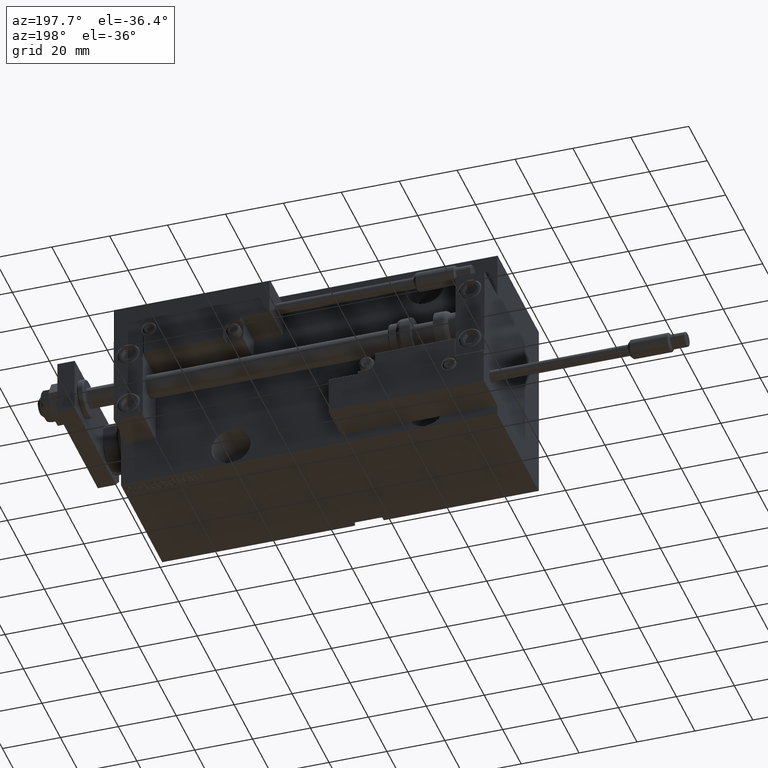
[diagram: clean part render]
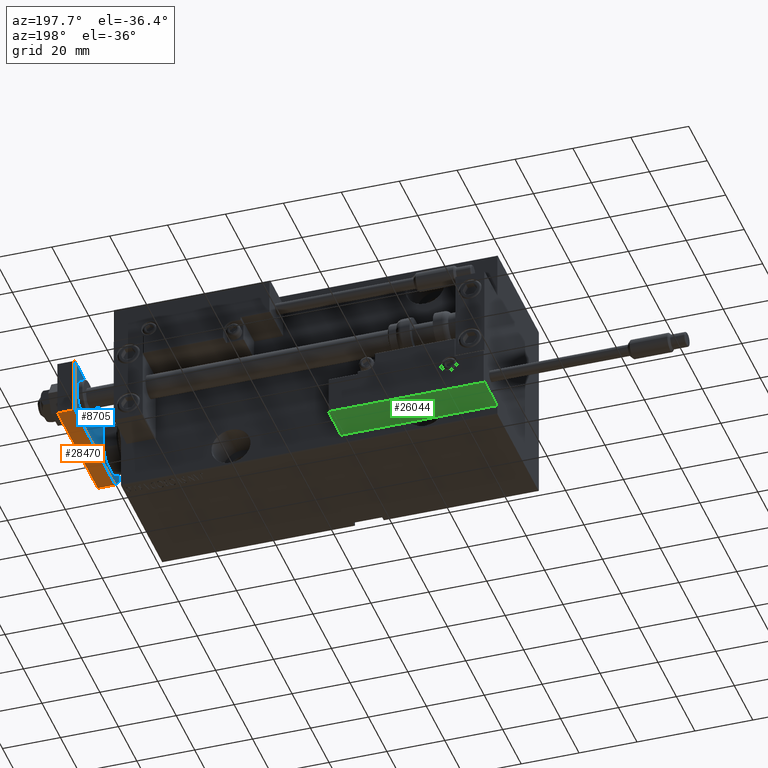
[diagram: same view with three faces highlighted in distinct colors, each labeled with its STEP entity id]
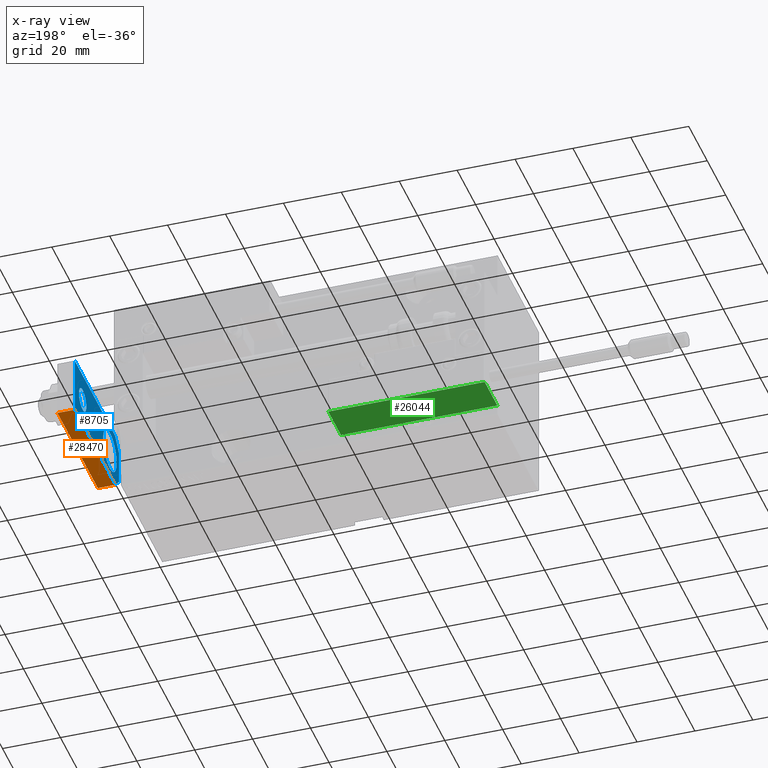
[diagram: x-ray of the same camera — body ghosted, the three highlighted faces saturated]
A machine part, auxiliary view with three faces highlighted in distinct colors.
The next image is the same camera in x-ray (body ghosted, the three faces saturated) — at least one of them is partly hidden behind the body in this view.
Their STEP definitions:

[orange] entity #28470 — the highlighted planar face has unit normal (0, -0, 1).
#2099 = EDGE_LOOP ( 'NONE', ( #33520, #47803, #28993, #17469 ) ) ;
#2388 = DIRECTION ( 'NONE',  ( -7.228014483236695816E-17, 1.000000000000000000, 0.000000000000000000 ) ) ;
#3755 = CARTESIAN_POINT ( 'NONE',  ( 10.00000000000000178, 48.00000000000000000, 6.000000000000000000 ) ) ;
#4440 = CARTESIAN_POINT ( 'NONE',  ( 10.00000000000000178, 48.00000000000000000, 0.000000000000000000 ) ) ;
#4664 = LINE ( 'NONE', #23952, #39339 ) ;
#6071 = AXIS2_PLACEMENT_3D ( 'NONE', #32926, #39795, #24839 ) ;
#7354 = CARTESIAN_POINT ( 'NONE',  ( 10.00000000000000178, 48.00000000000000000, 6.000000000000000000 ) ) ;
#7883 = VECTOR ( 'NONE', #50167, 1000.000000000000000 ) ;
#9580 = DIRECTION ( 'NONE',  ( -7.228014483236695816E-17, 1.000000000000000000, 0.000000000000000000 ) ) ;
#13053 = CARTESIAN_POINT ( 'NONE',  ( 10.00000000000000533, 4.239999999999986890, 0.000000000000000000 ) ) ;
#15388 = CARTESIAN_POINT ( 'NONE',  ( 10.00000000000000533, 4.239999999999986890, 6.000000000000000000 ) ) ;
#16072 = VERTEX_POINT ( 'NONE', #7354 ) ;
#16573 = EDGE_CURVE ( 'NONE', #28589, #16072, #36461, .T. ) ;
#17469 = ORIENTED_EDGE ( 'NONE', *, *, #45846, .F. ) ;
#17633 = LINE ( 'NONE', #48555, #17950 ) ;
#17950 = VECTOR ( 'NONE', #2388, 1000.000000000000000 ) ;
#18746 = EDGE_CURVE ( 'NONE', #48351, #22755, #17633, .T. ) ;
#20525 = PLANE ( 'NONE',  #6071 ) ;
#20750 = CARTESIAN_POINT ( 'NONE',  ( 10.00000000000000533, 0.000000000000000000, 6.000000000000000000 ) ) ;
#22755 = VERTEX_POINT ( 'NONE', #4440 ) ;
#23952 = CARTESIAN_POINT ( 'NONE',  ( 10.00000000000000533, 4.239999999999986890, 6.000000000000000000 ) ) ;
#24209 = DIRECTION ( 'NONE',  ( 0.000000000000000000, 0.000000000000000000, -1.000000000000000000 ) ) ;
#24839 = DIRECTION ( 'NONE',  ( 7.228014483236695816E-17, -1.000000000000000000, 0.000000000000000000 ) ) ;
#25971 = EDGE_CURVE ( 'NONE', #28589, #48351, #4664, .T. ) ;
#27574 = VECTOR ( 'NONE', #9580, 1000.000000000000000 ) ;
#28470 = ADVANCED_FACE ( 'NONE', ( #44095 ), #20525, .F. ) ;
#28589 = VERTEX_POINT ( 'NONE', #15388 ) ;
#28993 = ORIENTED_EDGE ( 'NONE', *, *, #18746, .T. ) ;
#32926 = CARTESIAN_POINT ( 'NONE',  ( 10.00000000000000533, 0.000000000000000000, 6.000000000000000000 ) ) ;
#33520 = ORIENTED_EDGE ( 'NONE', *, *, #16573, .F. ) ;
#36461 = LINE ( 'NONE', #20750, #27574 ) ;
#38509 = LINE ( 'NONE', #3755, #7883 ) ;
#39339 = VECTOR ( 'NONE', #24209, 1000.000000000000000 ) ;
#39795 = DIRECTION ( 'NONE',  ( -1.000000000000000000, -7.228014483236695816E-17, 0.000000000000000000 ) ) ;
#44095 = FACE_OUTER_BOUND ( 'NONE', #2099, .T. ) ;
#45846 = EDGE_CURVE ( 'NONE', #16072, #22755, #38509, .T. ) ;
#47803 = ORIENTED_EDGE ( 'NONE', *, *, #25971, .T. ) ;
#48351 = VERTEX_POINT ( 'NONE', #13053 ) ;
#48555 = CARTESIAN_POINT ( 'NONE',  ( 10.00000000000000533, 0.000000000000000000, 0.000000000000000000 ) ) ;
#50167 = DIRECTION ( 'NONE',  ( -0.000000000000000000, -0.000000000000000000, -1.000000000000000000 ) ) ;

[blue] entity #8705 — the highlighted planar face has unit normal (1, 0, -0).
#365 = CARTESIAN_POINT ( 'NONE',  ( 0.000000000000000000, 0.000000000000000000, 0.000000000000000000 ) ) ;
#907 = DIRECTION ( 'NONE',  ( -0.7071067811865464625, 0.7071067811865486830, -0.000000000000000000 ) ) ;
#1023 = EDGE_LOOP ( 'NONE', ( #22956, #27568, #25807, #34897, #20294, #2662 ) ) ;
#1122 = FACE_OUTER_BOUND ( 'NONE', #1023, .T. ) ;
#1852 = CARTESIAN_POINT ( 'NONE',  ( -10.00000000000000000, 48.00000000000000000, 0.000000000000000000 ) ) ;
#2388 = DIRECTION ( 'NONE',  ( -7.228014483236695816E-17, 1.000000000000000000, 0.000000000000000000 ) ) ;
#2662 = ORIENTED_EDGE ( 'NONE', *, *, #47300, .T. ) ;
#3168 = DIRECTION ( 'NONE',  ( 1.000000000000000000, 0.000000000000000000, 0.000000000000000000 ) ) ;
#3191 = CARTESIAN_POINT ( 'NONE',  ( -5.759999999999997122, 0.000000000000000000, 0.000000000000000000 ) ) ;
#4440 = CARTESIAN_POINT ( 'NONE',  ( 10.00000000000000178, 48.00000000000000000, 0.000000000000000000 ) ) ;
#4912 = DIRECTION ( 'NONE',  ( -0.7071067811865492381, -0.7071067811865457964, -0.000000000000000000 ) ) ;
#4913 = DIRECTION ( 'NONE',  ( 0.000000000000000000, 0.000000000000000000, 1.000000000000000000 ) ) ;
#8461 = LINE ( 'NONE', #20650, #46010 ) ;
#8705 = ADVANCED_FACE ( 'NONE', ( #1122, #19928, #24484 ), #11802, .F. ) ;
#8853 = VERTEX_POINT ( 'NONE', #11493 ) ;
#8928 = CARTESIAN_POINT ( 'NONE',  ( 10.00000000000000178, 48.00000000000000000, 0.000000000000000000 ) ) ;
#9250 = DIRECTION ( 'NONE',  ( 1.000000000000000000, 0.000000000000000000, 0.000000000000000000 ) ) ;
#9984 = EDGE_LOOP ( 'NONE', ( #48187, #13595 ) ) ;
#10265 = CARTESIAN_POINT ( 'NONE',  ( 4.000000000000000888, 39.50000000000000000, 0.000000000000000000 ) ) ;
#11173 = VERTEX_POINT ( 'NONE', #43218 ) ;
#11493 = CARTESIAN_POINT ( 'NONE',  ( -4.000000000000000888, 39.50000000000000000, 0.000000000000000000 ) ) ;
#11802 = PLANE ( 'NONE',  #25811 ) ;
#12997 = DIRECTION ( 'NONE',  ( -1.000000000000000000, 0.000000000000000000, 0.000000000000000000 ) ) ;
#13053 = CARTESIAN_POINT ( 'NONE',  ( 10.00000000000000533, 4.239999999999986890, 0.000000000000000000 ) ) ;
#13595 = ORIENTED_EDGE ( 'NONE', *, *, #32526, .T. ) ;
#13809 = CARTESIAN_POINT ( 'NONE',  ( -10.00000000000000533, 0.000000000000000000, 0.000000000000000000 ) ) ;
#14318 = CIRCLE ( 'NONE', #22429, 4.000000000000000888 ) ;
#14365 = ORIENTED_EDGE ( 'NONE', *, *, #26760, .T. ) ;
#14537 = LINE ( 'NONE', #42165, #38069 ) ;
#15571 = DIRECTION ( 'NONE',  ( 0.000000000000000000, 0.000000000000000000, 1.000000000000000000 ) ) ;
#15610 = EDGE_CURVE ( 'NONE', #34267, #41214, #14537, .T. ) ;
#15869 = DIRECTION ( 'NONE',  ( -0.000000000000000000, 0.000000000000000000, 1.000000000000000000 ) ) ;
#16314 = DIRECTION ( 'NONE',  ( 1.000000000000000000, 0.000000000000000000, 0.000000000000000000 ) ) ;
#16615 = DIRECTION ( 'NONE',  ( 1.000000000000000000, 0.000000000000000000, 0.000000000000000000 ) ) ;
#17521 = VERTEX_POINT ( 'NONE', #3191 ) ;
#17633 = LINE ( 'NONE', #48555, #17950 ) ;
#17950 = VECTOR ( 'NONE', #2388, 1000.000000000000000 ) ;
#18084 = DIRECTION ( 'NONE',  ( -1.084202172485504434E-16, -1.000000000000000000, 0.000000000000000000 ) ) ;
#18746 = EDGE_CURVE ( 'NONE', #48351, #22755, #17633, .T. ) ;
#19698 = LINE ( 'NONE', #19955, #36920 ) ;
#19928 = FACE_BOUND ( 'NONE', #9984, .T. ) ;
#19955 = CARTESIAN_POINT ( 'NONE',  ( -5.759999999999997122, 0.000000000000000000, 0.000000000000000000 ) ) ;
#20294 = ORIENTED_EDGE ( 'NONE', *, *, #18746, .F. ) ;
#20602 = LINE ( 'NONE', #8928, #45728 ) ;
#20650 = CARTESIAN_POINT ( 'NONE',  ( 10.00000000000000533, 4.239999999999986890, 0.000000000000000000 ) ) ;
#20765 = CIRCLE ( 'NONE', #42559, 7.250000000000000000 ) ;
#21429 = LINE ( 'NONE', #13809, #39400 ) ;
#22429 = AXIS2_PLACEMENT_3D ( 'NONE', #35847, #4913, #23948 ) ;
#22456 = CARTESIAN_POINT ( 'NONE',  ( -9.629649721936179265E-32, 10.00000000000000178, 0.000000000000000000 ) ) ;
#22495 = AXIS2_PLACEMENT_3D ( 'NONE', #45741, #15571, #31283 ) ;
#22755 = VERTEX_POINT ( 'NONE', #4440 ) ;
#22782 = VERTEX_POINT ( 'NONE', #32593 ) ;
#22956 = ORIENTED_EDGE ( 'NONE', *, *, #42434, .F. ) ;
#23948 = DIRECTION ( 'NONE',  ( 1.000000000000000000, 0.000000000000000000, 0.000000000000000000 ) ) ;
#24484 = FACE_BOUND ( 'NONE', #46771, .T. ) ;
#25807 = ORIENTED_EDGE ( 'NONE', *, *, #15610, .F. ) ;
#25811 = AXIS2_PLACEMENT_3D ( 'NONE', #365, #15869, #16615 ) ;
#26760 = EDGE_CURVE ( 'NONE', #11173, #22782, #20765, .T. ) ;
#27215 = EDGE_CURVE ( 'NONE', #22755, #34267, #20602, .T. ) ;
#27568 = ORIENTED_EDGE ( 'NONE', *, *, #29462, .T. ) ;
#27700 = CARTESIAN_POINT ( 'NONE',  ( -1.432611055310774642E-16, 39.50000000000000000, 0.000000000000000000 ) ) ;
#28691 = CARTESIAN_POINT ( 'NONE',  ( 5.759999999999998010, 0.000000000000000000, 0.000000000000000000 ) ) ;
#28817 = ORIENTED_EDGE ( 'NONE', *, *, #46486, .T. ) ;
#28876 = VERTEX_POINT ( 'NONE', #10265 ) ;
#29462 = EDGE_CURVE ( 'NONE', #17521, #41214, #19698, .T. ) ;
#31283 = DIRECTION ( 'NONE',  ( 1.000000000000000000, 0.000000000000000000, 0.000000000000000000 ) ) ;
#32526 = EDGE_CURVE ( 'NONE', #28876, #8853, #14318, .T. ) ;
#32593 = CARTESIAN_POINT ( 'NONE',  ( 7.250000000000000000, 10.00000000000000355, 0.000000000000000000 ) ) ;
#34267 = VERTEX_POINT ( 'NONE', #1852 ) ;
#34655 = CIRCLE ( 'NONE', #22495, 7.250000000000000000 ) ;
#34897 = ORIENTED_EDGE ( 'NONE', *, *, #27215, .F. ) ;
#35568 = DIRECTION ( 'NONE',  ( 0.000000000000000000, 0.000000000000000000, 1.000000000000000000 ) ) ;
#35847 = CARTESIAN_POINT ( 'NONE',  ( -1.432611055310774642E-16, 39.50000000000000000, 0.000000000000000000 ) ) ;
#36275 = EDGE_CURVE ( 'NONE', #8853, #28876, #38342, .T. ) ;
#36920 = VECTOR ( 'NONE', #907, 999.9999999999998863 ) ;
#37925 = DIRECTION ( 'NONE',  ( 0.000000000000000000, 0.000000000000000000, 1.000000000000000000 ) ) ;
#38069 = VECTOR ( 'NONE', #18084, 1000.000000000000000 ) ;
#38342 = CIRCLE ( 'NONE', #40004, 4.000000000000000888 ) ;
#38852 = CARTESIAN_POINT ( 'NONE',  ( -10.00000000000000533, 4.240000000000021529, 0.000000000000000000 ) ) ;
#39400 = VECTOR ( 'NONE', #9250, 1000.000000000000000 ) ;
#40004 = AXIS2_PLACEMENT_3D ( 'NONE', #27700, #35568, #16314 ) ;
#41214 = VERTEX_POINT ( 'NONE', #38852 ) ;
#42165 = CARTESIAN_POINT ( 'NONE',  ( -10.00000000000000000, 48.00000000000000000, 0.000000000000000000 ) ) ;
#42434 = EDGE_CURVE ( 'NONE', #17521, #42724, #21429, .T. ) ;
#42559 = AXIS2_PLACEMENT_3D ( 'NONE', #22456, #37925, #3168 ) ;
#42724 = VERTEX_POINT ( 'NONE', #28691 ) ;
#43218 = CARTESIAN_POINT ( 'NONE',  ( -7.250000000000000000, 10.00000000000000178, 0.000000000000000000 ) ) ;
#45728 = VECTOR ( 'NONE', #12997, 1000.000000000000000 ) ;
#45741 = CARTESIAN_POINT ( 'NONE',  ( -9.629649721936179265E-32, 10.00000000000000178, 0.000000000000000000 ) ) ;
#46010 = VECTOR ( 'NONE', #4912, 1000.000000000000114 ) ;
#46486 = EDGE_CURVE ( 'NONE', #22782, #11173, #34655, .T. ) ;
#46771 = EDGE_LOOP ( 'NONE', ( #14365, #28817 ) ) ;
#47300 = EDGE_CURVE ( 'NONE', #48351, #42724, #8461, .T. ) ;
#48187 = ORIENTED_EDGE ( 'NONE', *, *, #36275, .T. ) ;
#48351 = VERTEX_POINT ( 'NONE', #13053 ) ;
#48555 = CARTESIAN_POINT ( 'NONE',  ( 10.00000000000000533, 0.000000000000000000, 0.000000000000000000 ) ) ;

[green] entity #26044 — the highlighted planar face has unit normal (-0, -0, 1).
#1015 = VERTEX_POINT ( 'NONE', #27451 ) ;
#3164 = ORIENTED_EDGE ( 'NONE', *, *, #15513, .T. ) ;
#3698 = AXIS2_PLACEMENT_3D ( 'NONE', #26166, #41648, #18578 ) ;
#3705 = CARTESIAN_POINT ( 'NONE',  ( 27.00000000000006395, 20.00000000000001776, 13.70000000000000107 ) ) ;
#8001 = VERTEX_POINT ( 'NONE', #40931 ) ;
#10709 = FACE_OUTER_BOUND ( 'NONE', #45021, .T. ) ;
#11106 = VECTOR ( 'NONE', #27047, 1000.000000000000000 ) ;
#11328 = VECTOR ( 'NONE', #29251, 1000.000000000000000 ) ;
#11915 = LINE ( 'NONE', #31187, #49085 ) ;
#15513 = EDGE_CURVE ( 'NONE', #8001, #47977, #32570, .T. ) ;
#15679 = ORIENTED_EDGE ( 'NONE', *, *, #42918, .F. ) ;
#18578 = DIRECTION ( 'NONE',  ( 1.000000000000000000, -6.424901762877063495E-17, 0.000000000000000000 ) ) ;
#19057 = VECTOR ( 'NONE', #42267, 1000.000000000000000 ) ;
#22008 = LINE ( 'NONE', #3705, #19057 ) ;
#22122 = CARTESIAN_POINT ( 'NONE',  ( -26.99999999999993605, 20.00000000000002132, 13.70000000000000107 ) ) ;
#26044 = ADVANCED_FACE ( 'NONE', ( #10709 ), #37111, .F. ) ;
#26166 = CARTESIAN_POINT ( 'NONE',  ( 27.00000000000006395, 20.00000000000001776, 14.00000000000000000 ) ) ;
#27047 = DIRECTION ( 'NONE',  ( -1.000000000000000000, 6.424901762877062263E-17, 0.000000000000000000 ) ) ;
#27451 = CARTESIAN_POINT ( 'NONE',  ( -26.99999999999993605, 20.00000000000002132, 0.000000000000000000 ) ) ;
#29251 = DIRECTION ( 'NONE',  ( -0.000000000000000000, -0.000000000000000000, -1.000000000000000000 ) ) ;
#29347 = EDGE_CURVE ( 'NONE', #32685, #8001, #22008, .T. ) ;
#30308 = ORIENTED_EDGE ( 'NONE', *, *, #29347, .T. ) ;
#30357 = LINE ( 'NONE', #38726, #11106 ) ;
#31187 = CARTESIAN_POINT ( 'NONE',  ( -26.99999999999993605, 20.00000000000002132, 14.00000000000000000 ) ) ;
#32570 = LINE ( 'NONE', #41174, #11328 ) ;
#32685 = VERTEX_POINT ( 'NONE', #22122 ) ;
#32949 = EDGE_CURVE ( 'NONE', #47977, #1015, #30357, .T. ) ;
#34737 = CARTESIAN_POINT ( 'NONE',  ( 27.00000000000006395, 20.00000000000001776, 0.000000000000000000 ) ) ;
#37111 = PLANE ( 'NONE',  #3698 ) ;
#37483 = ORIENTED_EDGE ( 'NONE', *, *, #32949, .T. ) ;
#38726 = CARTESIAN_POINT ( 'NONE',  ( 27.00000000000006395, 20.00000000000001776, 0.000000000000000000 ) ) ;
#40931 = CARTESIAN_POINT ( 'NONE',  ( 27.00000000000006395, 20.00000000000001776, 13.70000000000000107 ) ) ;
#41174 = CARTESIAN_POINT ( 'NONE',  ( 27.00000000000006395, 20.00000000000001776, 14.00000000000000000 ) ) ;
#41648 = DIRECTION ( 'NONE',  ( -6.424901762877063495E-17, -1.000000000000000000, 0.000000000000000000 ) ) ;
#42267 = DIRECTION ( 'NONE',  ( 1.000000000000000000, -6.424901762877063495E-17, -0.000000000000000000 ) ) ;
#42918 = EDGE_CURVE ( 'NONE', #32685, #1015, #11915, .T. ) ;
#45021 = EDGE_LOOP ( 'NONE', ( #15679, #30308, #3164, #37483 ) ) ;
#46646 = DIRECTION ( 'NONE',  ( -0.000000000000000000, -0.000000000000000000, -1.000000000000000000 ) ) ;
#47977 = VERTEX_POINT ( 'NONE', #34737 ) ;
#49085 = VECTOR ( 'NONE', #46646, 1000.000000000000000 ) ;